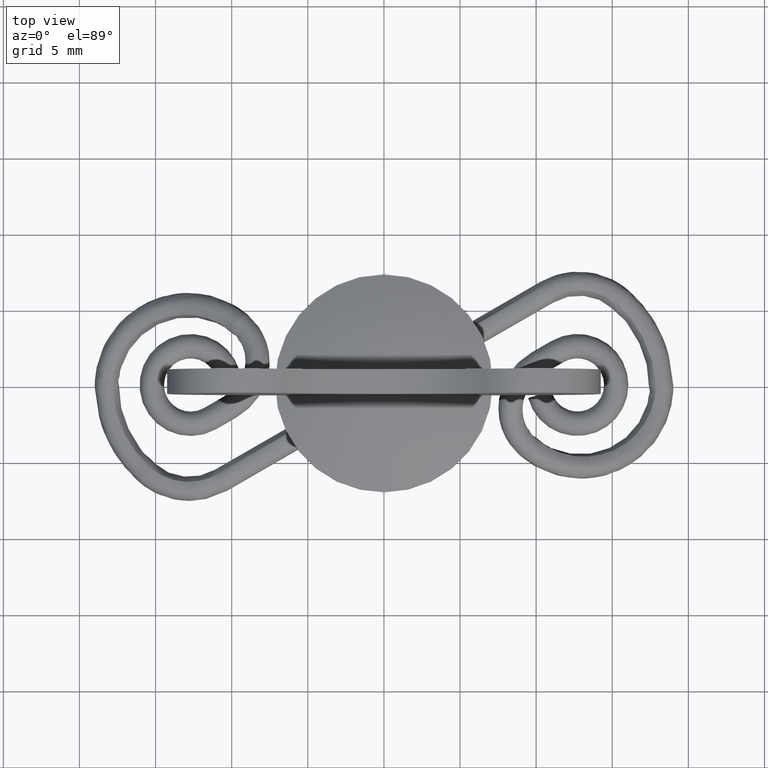
[diagram: clean part render]
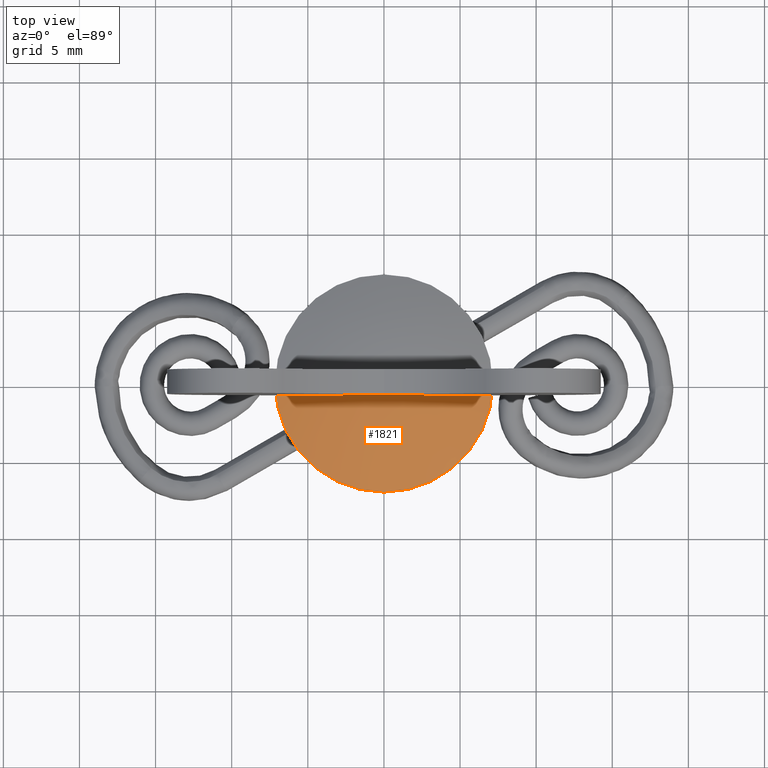
[diagram: same view with one face highlighted and labeled with its STEP entity id]
A machine part, top view. The second image highlights one B-rep face of the part: STEP entity #1821.
In plain terms, the highlighted spherical surface has radius 18.958 mm.
Its self-contained STEP definition (entity closure, byte-faithful):
#482 = AXIS2_PLACEMENT_3D ( 'NONE', #1927, #6853, #2624 ) ;
#1132 = DIRECTION ( 'NONE',  ( 0.0000000000000000000, -1.000000000000000000, 0.0000000000000000000 ) ) ;
#1134 = AXIS2_PLACEMENT_3D ( 'NONE', #7682, #3457, #8392 ) ;
#1174 = DIRECTION ( 'NONE',  ( 0.0000000000000000000, -0.0000000000000000000, 1.000000000000000000 ) ) ;
#1377 = EDGE_CURVE ( 'NONE', #6370, #3396, #7178, .T. ) ;
#1476 = CARTESIAN_POINT ( 'NONE',  ( -6.502384829061767000, 0.0000000000000000000, 11.19406826094162400 ) ) ;
#1821 = ADVANCED_FACE ( 'NONE', ( #4841 ), #8613, .T. ) ;
#1862 = CARTESIAN_POINT ( 'NONE',  ( 7.150000000000000400, 8.756224613903575500E-016, 10.94406900000000200 ) ) ;
#1927 = CARTESIAN_POINT ( 'NONE',  ( 0.0000000000000000000, 0.0000000000000000000, 10.94406900000000200 ) ) ;
#1945 = CARTESIAN_POINT ( 'NONE',  ( 6.452984461875961300, -0.8000000000000000400, 11.19406826094162400 ) ) ;
#2030 = EDGE_CURVE ( 'NONE', #8921, #2194, #2739, .T. ) ;
#2044 = CARTESIAN_POINT ( 'NONE',  ( -1.734723475976807100E-015, 0.0000000000000000000, -6.613966714285698600 ) ) ;
#2127 = DIRECTION ( 'NONE',  ( -1.224646799147353200E-016, -1.000000000000000000, -0.0000000000000000000 ) ) ;
#2194 = VERTEX_POINT ( 'NONE', #1945 ) ;
#2624 = DIRECTION ( 'NONE',  ( 1.000000000000000000, 0.0000000000000000000, 0.0000000000000000000 ) ) ;
#2678 = EDGE_CURVE ( 'NONE', #6609, #7319, #3764, .T. ) ;
#2739 = CIRCLE ( 'NONE', #8782, 18.94114880740162800 ) ;
#2747 = DIRECTION ( 'NONE',  ( 0.0000000000000000000, 0.0000000000000000000, 1.000000000000000000 ) ) ;
#3099 = EDGE_LOOP ( 'NONE', ( #3224, #7623, #6157, #5063, #3530, #5257 ) ) ;
#3224 = ORIENTED_EDGE ( 'NONE', *, *, #6653, .T. ) ;
#3396 = VERTEX_POINT ( 'NONE', #1476 ) ;
#3400 = DIRECTION ( 'NONE',  ( 0.0000000000000000000, 1.000000000000000000, 0.0000000000000000000 ) ) ;
#3457 = DIRECTION ( 'NONE',  ( 0.0000000000000000000, -0.0000000000000000000, 1.000000000000000000 ) ) ;
#3487 = CIRCLE ( 'NONE', #482, 7.150000000000000400 ) ;
#3530 = ORIENTED_EDGE ( 'NONE', *, *, #5819, .F. ) ;
#3565 = AXIS2_PLACEMENT_3D ( 'NONE', #2044, #6984, #2747 ) ;
#3686 = CARTESIAN_POINT ( 'NONE',  ( -7.150000000000000400, 0.0000000000000000000, 10.94406900000000200 ) ) ;
#3764 = CIRCLE ( 'NONE', #8133, 18.95803571428570000 ) ;
#4101 = AXIS2_PLACEMENT_3D ( 'NONE', #5408, #1174, #6110 ) ;
#4525 = AXIS2_PLACEMENT_3D ( 'NONE', #4674, #1132, #5387 ) ;
#4674 = CARTESIAN_POINT ( 'NONE',  ( -1.734723475976807100E-015, 0.0000000000000000000, -6.613966714285698600 ) ) ;
#4841 = FACE_OUTER_BOUND ( 'NONE', #3099, .T. ) ;
#5063 = ORIENTED_EDGE ( 'NONE', *, *, #2030, .F. ) ;
#5257 = ORIENTED_EDGE ( 'NONE', *, *, #1377, .F. ) ;
#5387 = DIRECTION ( 'NONE',  ( -1.000000000000000000, 0.0000000000000000000, 0.0000000000000000000 ) ) ;
#5408 = CARTESIAN_POINT ( 'NONE',  ( -1.734723475976807100E-015, 0.0000000000000000000, 11.19406826094162400 ) ) ;
#5819 = EDGE_CURVE ( 'NONE', #3396, #8921, #6916, .T. ) ;
#5845 = CARTESIAN_POINT ( 'NONE',  ( 6.502384829061763400, -7.963124767734800700E-016, 11.19406826094162400 ) ) ;
#6110 = DIRECTION ( 'NONE',  ( 1.000000000000000000, 0.0000000000000000000, 0.0000000000000000000 ) ) ;
#6135 = CIRCLE ( 'NONE', #4101, 6.502384829061765200 ) ;
#6157 = ORIENTED_EDGE ( 'NONE', *, *, #7433, .F. ) ;
#6337 = CARTESIAN_POINT ( 'NONE',  ( -1.734723475976807100E-015, 0.0000000000000000000, -6.613966714285698600 ) ) ;
#6370 = VERTEX_POINT ( 'NONE', #3686 ) ;
#6609 = VERTEX_POINT ( 'NONE', #1862 ) ;
#6653 = EDGE_CURVE ( 'NONE', #6370, #6609, #3487, .T. ) ;
#6853 = DIRECTION ( 'NONE',  ( 0.0000000000000000000, 0.0000000000000000000, 1.000000000000000000 ) ) ;
#6916 = CIRCLE ( 'NONE', #1134, 6.502384829061765200 ) ;
#6984 = DIRECTION ( 'NONE',  ( 0.0000000000000000000, 1.000000000000000000, 0.0000000000000000000 ) ) ;
#7061 = DIRECTION ( 'NONE',  ( 1.000000000000000000, -1.224646799147353500E-016, 0.0000000000000000000 ) ) ;
#7165 = CARTESIAN_POINT ( 'NONE',  ( -6.452984461875964900, -0.8000000000000000400, 11.19406826094162400 ) ) ;
#7178 = CIRCLE ( 'NONE', #3565, 18.95803571428570300 ) ;
#7319 = VERTEX_POINT ( 'NONE', #5845 ) ;
#7433 = EDGE_CURVE ( 'NONE', #2194, #7319, #6135, .T. ) ;
#7623 = ORIENTED_EDGE ( 'NONE', *, *, #2678, .T. ) ;
#7630 = CARTESIAN_POINT ( 'NONE',  ( -1.734723475976807100E-015, -0.8000000000000000400, -6.613966714285698600 ) ) ;
#7682 = CARTESIAN_POINT ( 'NONE',  ( -1.734723475976807100E-015, 0.0000000000000000000, 11.19406826094162400 ) ) ;
#8133 = AXIS2_PLACEMENT_3D ( 'NONE', #6337, #2127, #7061 ) ;
#8330 = DIRECTION ( 'NONE',  ( 0.0000000000000000000, 0.0000000000000000000, 1.000000000000000000 ) ) ;
#8392 = DIRECTION ( 'NONE',  ( 1.000000000000000000, 0.0000000000000000000, 0.0000000000000000000 ) ) ;
#8613 = SPHERICAL_SURFACE ( 'NONE', #4525, 18.95803571428570300 ) ;
#8782 = AXIS2_PLACEMENT_3D ( 'NONE', #7630, #3400, #8330 ) ;
#8921 = VERTEX_POINT ( 'NONE', #7165 ) ;